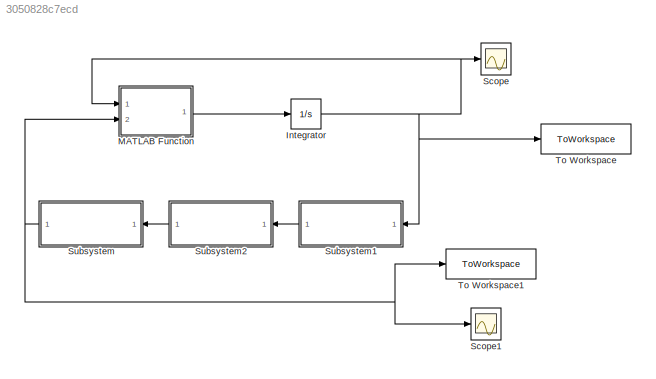
MODEL slx_3050828c7ecd
KIND model
CONFIG AbsTol = auto
CONFIG EnableMultiTasking = off
CONFIG FixedStep = auto
CONFIG MaxStep = auto
CONFIG MinStep = auto
CONFIG RelTol = 1e-3
CONFIG SampleTimeConstraint = Unconstrained
CONFIG SolverName = VariableStepAuto
CONFIG StartTime = 0.0
CONFIG StopTime = 10.0
BLOCK [Integrator] Integrator
  InitialCondition = x0
  Ports = [1, 1]
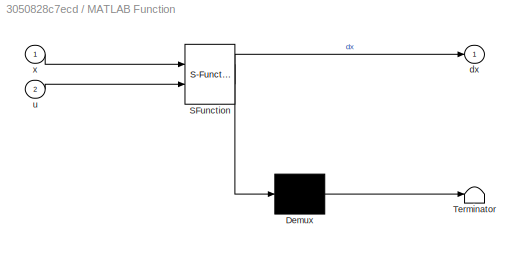
BLOCK [SubSystem] MATLAB Function
  ErrorFcn = Stateflow.Translate.translate
  PermitHierarchicalResolution = ExplicitOnly
  Ports = [2, 1]
  RequestExecContextInheritance = off
  SFBlockType = MATLAB Function
  TreatAsAtomicUnit = on
BLOCK [Demux] MATLAB Function/ Demux 
  Outputs = 1
  Ports = [1, 1]
BLOCK [S-Function] MATLAB Function/ SFunction 
  EnableBusSupport = on
  FunctionName = sf_sfun
  PortCounts = [2 2]
  Ports = [2, 2]
  SFcnIsStateOwnerBlock = off
  SFunctionDeploymentMode = off
  Tag = Stateflow S-Function 2
BLOCK [Terminator] MATLAB Function/ Terminator 
BLOCK [Outport] MATLAB Function/dx
BLOCK [Inport] MATLAB Function/u
  Port = 2
BLOCK [Inport] MATLAB Function/x
BLOCK [Scope] Scope
  Floating = off
  NumInputPorts = 1
  Ports = [1]
  ScopeSpecificationString = Simulink.scopes.TimeScopeBlockCfg('CurrentConfiguration', extmgr.ConfigurationSet(extmgr.Configuration('Core','General UI',true),extmgr.Configuration('Core','Source UI',true),extmgr.Configuration('Sources','WiredSimulink',true,'DataLoggingVariableName','ScopeData1'),extmgr.Configuration('Visuals','Time Domain',true,'SerializedDisplays',{struct('MinYLimReal','-4.34199','MaxYLimReal','10.41316','YLa...<+1445ch>
BLOCK [Scope] Scope1
  Floating = off
  NumInputPorts = 1
  Ports = [1]
  ScopeSpecificationString = Simulink.scopes.TimeScopeBlockCfg('CurrentConfiguration', extmgr.ConfigurationSet(extmgr.Configuration('Core','General UI',true),extmgr.Configuration('Core','Source UI',true),extmgr.Configuration('Sources','WiredSimulink',true),extmgr.Configuration('Visuals','Time Domain',true),extmgr.Configuration('Tools','Plot Navigation',true),extmgr.Configuration('Tools','Measurements',true)),'Version','2021a'...<+1ch>
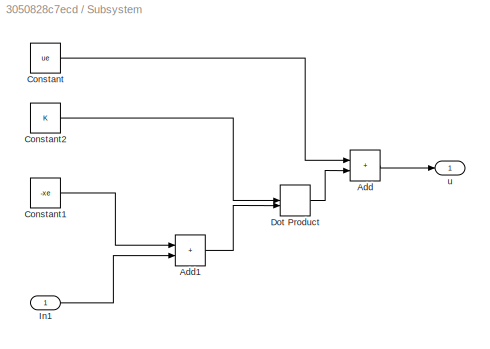
BLOCK [SubSystem] Subsystem
  NameLocation = top
  Ports = [1, 1]
  RequestExecContextInheritance = off
BLOCK [Sum] Subsystem/Add
  IconShape = rectangular
  Ports = [2, 1]
BLOCK [Sum] Subsystem/Add1
  IconShape = rectangular
  Ports = [2, 1]
BLOCK [Constant] Subsystem/Constant
  Value = ue
BLOCK [Constant] Subsystem/Constant1
  Value = -xe
BLOCK [Constant] Subsystem/Constant2
  Value = K
BLOCK [DotProduct] Subsystem/Dot Product
  OutDataTypeStr = Inherit: Inherit via internal rule
BLOCK [Inport] Subsystem/In1
BLOCK [Outport] Subsystem/u
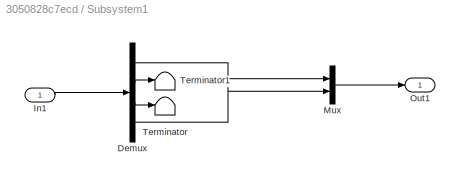
BLOCK [SubSystem] Subsystem1
  Ports = [1, 1]
  RequestExecContextInheritance = off
BLOCK [Demux] Subsystem1/Demux
  Ports = [1, 4]
BLOCK [Inport] Subsystem1/In1
BLOCK [Mux] Subsystem1/Mux
  DisplayOption = bar
  Inputs = 2
  Ports = [2, 1]
BLOCK [Outport] Subsystem1/Out1
BLOCK [Terminator] Subsystem1/Terminator
BLOCK [Terminator] Subsystem1/Terminator1
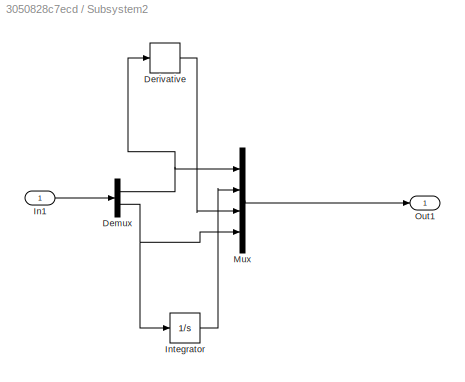
BLOCK [SubSystem] Subsystem2
  Ports = [1, 1]
  RequestExecContextInheritance = off
BLOCK [Demux] Subsystem2/Demux
  Outputs = 2
  Ports = [1, 2]
BLOCK [Derivative] Subsystem2/Derivative
BLOCK [Inport] Subsystem2/In1
BLOCK [Integrator] Subsystem2/Integrator
  InitialCondition = x0(2)
  Ports = [1, 1]
BLOCK [Mux] Subsystem2/Mux
  DisplayOption = bar
  Ports = [4, 1]
BLOCK [Outport] Subsystem2/Out1
BLOCK [ToWorkspace] To Workspace
  FixptAsFi = on
  MaxDataPoints = inf
  Ports = [1]
  SampleTime = -1
  SaveFormat = Timeseries
  VariableName = X
BLOCK [ToWorkspace] To Workspace1
  FixptAsFi = on
  MaxDataPoints = inf
  Ports = [1]
  SampleTime = -1
  SaveFormat = Timeseries
  VariableName = U
NET Integrator:1 -> MATLAB Function:1, Scope:1, Subsystem1:1, To Workspace:1
LINE MATLAB Function:1 -> Integrator:1
LINE Subsystem/Add1:1 -> Subsystem/Dot Product:2
LINE Subsystem/Add:1 -> Subsystem/u:1
LINE Subsystem/Constant1:1 -> Subsystem/Add1:1
LINE Subsystem/Constant2:1 -> Subsystem/Dot Product:1
LINE Subsystem/Constant:1 -> Subsystem/Add:1
LINE Subsystem/Dot Product:1 -> Subsystem/Add:2
LINE Subsystem/In1:1 -> Subsystem/Add1:2
LINE Subsystem1/Demux:1 -> Subsystem1/Mux:1
LINE Subsystem1/Demux:2 -> Subsystem1/Terminator1:1
LINE Subsystem1/Demux:3 -> Subsystem1/Terminator:1
LINE Subsystem1/Demux:4 -> Subsystem1/Mux:2
LINE Subsystem1/In1:1 -> Subsystem1/Demux:1
LINE Subsystem1/Mux:1 -> Subsystem1/Out1:1
LINE Subsystem1:1 -> Subsystem2:1
NET Subsystem2/Demux:1 -> Subsystem2/Derivative:1, Subsystem2/Mux:1
NET Subsystem2/Demux:2 -> Subsystem2/Integrator:1, Subsystem2/Mux:4
LINE Subsystem2/Derivative:1 -> Subsystem2/Mux:3
LINE Subsystem2/In1:1 -> Subsystem2/Demux:1
LINE Subsystem2/Integrator:1 -> Subsystem2/Mux:2
LINE Subsystem2/Mux:1 -> Subsystem2/Out1:1
LINE Subsystem2:1 -> Subsystem:1
NET Subsystem:1 -> MATLAB Function:2, Scope1:1, To Workspace1:1
note: NET lines group one-source signal fan-out (src -> all destinations, sorted); 1:1 wires keep LINE
CHART MATLAB Function states=1 transitions=1
  STATE_LABEL 'eML_blk_kernel()'
  STATE_LABEL 'SCRIPT:\nfunction dx   = fonction( x, u)\n%   Dynamic equations of motion of the segway on an axis.\n%   Inputs: - x = [theta psi dtheta dpsi]\n%               theta: average angle of the wheels      [rad]\n%               psi: body pitch angle                   [rad]\n%               dtheta: average velocity of the wheels  [rad/s]\n%               dpsi: body pitch velocity               [rad/s]\n%       ...<+1509ch>'
CHART  states=0 transitions=0
